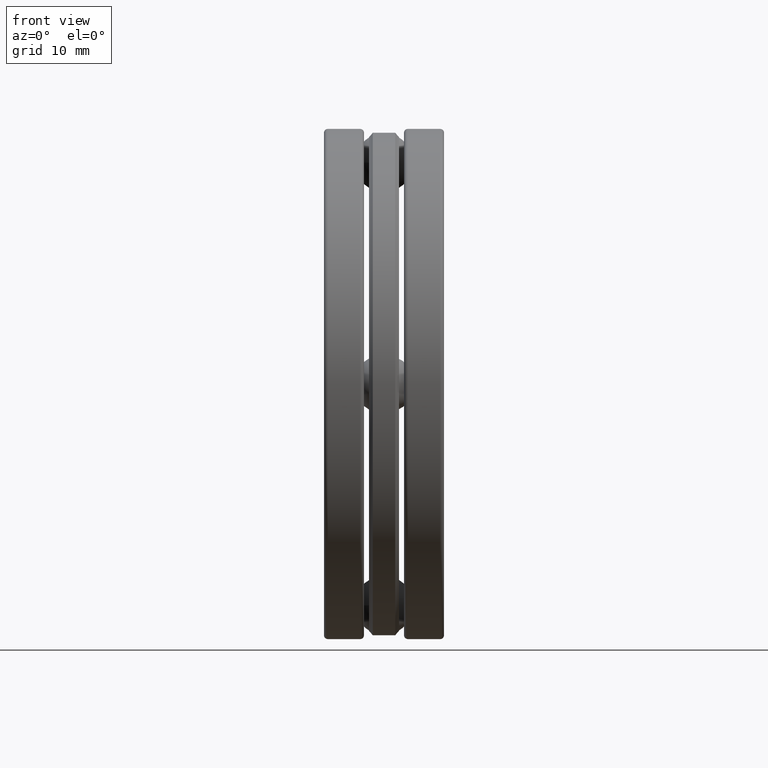
[diagram: clean part render]
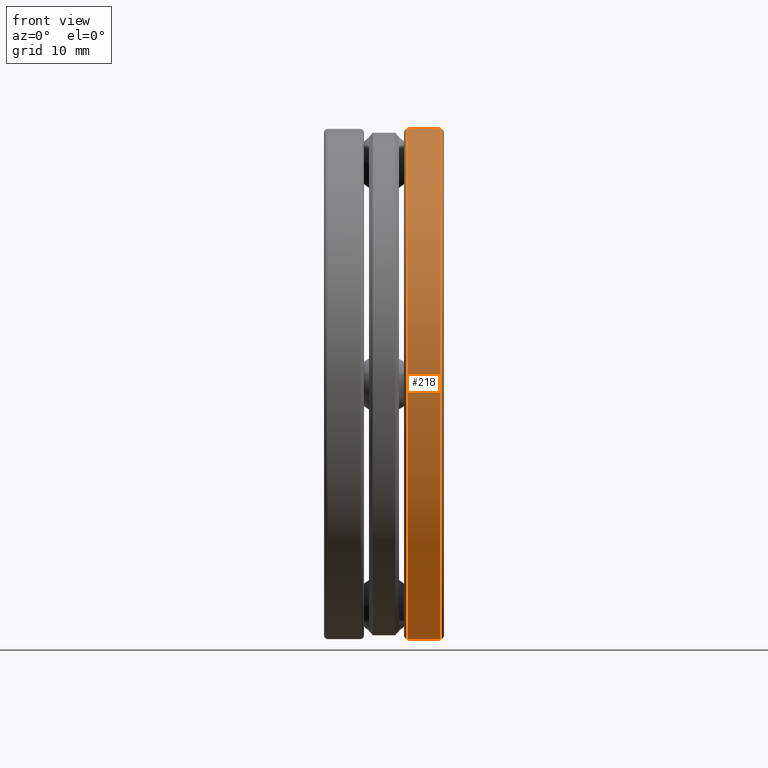
[diagram: same view with one face highlighted and labeled with its STEP entity id]
A machine part, front view. The second image highlights one B-rep face of the part: STEP entity #218.
In plain terms, the highlighted cylindrical surface (bore or boss wall) has radius 33.9979 mm, axis along (-1, -0, -0).
Its self-contained STEP definition (entity closure, byte-faithful):
#24 = DIRECTION ( 'NONE',  ( -1.000000000000000000, -0.0000000000000000000, -0.0000000000000000000 ) ) ;
#32 = FACE_OUTER_BOUND ( 'NONE', #562, .T. ) ;
#33 = EDGE_CURVE ( 'NONE', #607, #607, #538, .T. ) ;
#48 = ORIENTED_EDGE ( 'NONE', *, *, #33, .F. ) ;
#94 = CARTESIAN_POINT ( 'NONE',  ( 0.1250021000000005900, 0.0000000000000000000, 0.0000000000000000000 ) ) ;
#102 = VERTEX_POINT ( 'NONE', #691 ) ;
#119 = CARTESIAN_POINT ( 'NONE',  ( 0.0000000000000000000, 0.0000000000000000000, 0.0000000000000000000 ) ) ;
#120 = CIRCLE ( 'NONE', #464, 1.338499999999999600 ) ;
#156 = DIRECTION ( 'NONE',  ( 0.0000000000000000000, 0.0000000000000000000, 1.000000000000000000 ) ) ;
#178 = AXIS2_PLACEMENT_3D ( 'NONE', #94, #24, #156 ) ;
#182 = CARTESIAN_POINT ( 'NONE',  ( 0.2950000000000006500, 0.0000000000000000000, 0.0000000000000000000 ) ) ;
#218 = ADVANCED_FACE ( 'NONE', ( #577, #32 ), #772, .T. ) ;
#221 = EDGE_LOOP ( 'NONE', ( #48 ) ) ;
#306 = EDGE_CURVE ( 'NONE', #102, #102, #120, .T. ) ;
#430 = CARTESIAN_POINT ( 'NONE',  ( 0.1250021000000005900, 0.0000000000000000000, 1.338500000000000000 ) ) ;
#431 = DIRECTION ( 'NONE',  ( 0.0000000000000000000, 0.0000000000000000000, 1.000000000000000000 ) ) ;
#433 = DIRECTION ( 'NONE',  ( 0.0000000000000000000, 0.0000000000000000000, 1.000000000000000000 ) ) ;
#464 = AXIS2_PLACEMENT_3D ( 'NONE', #182, #673, #431 ) ;
#538 = CIRCLE ( 'NONE', #178, 1.338500000000000000 ) ;
#555 = DIRECTION ( 'NONE',  ( -1.000000000000000000, -0.0000000000000000000, -0.0000000000000000000 ) ) ;
#562 = EDGE_LOOP ( 'NONE', ( #785 ) ) ;
#577 = FACE_OUTER_BOUND ( 'NONE', #221, .T. ) ;
#607 = VERTEX_POINT ( 'NONE', #430 ) ;
#670 = AXIS2_PLACEMENT_3D ( 'NONE', #119, #555, #433 ) ;
#673 = DIRECTION ( 'NONE',  ( -1.000000000000000000, -0.0000000000000000000, -0.0000000000000000000 ) ) ;
#691 = CARTESIAN_POINT ( 'NONE',  ( 0.2950000000000006500, 0.0000000000000000000, 1.338499999999999600 ) ) ;
#772 = CYLINDRICAL_SURFACE ( 'NONE', #670, 1.338500000000000000 ) ;
#785 = ORIENTED_EDGE ( 'NONE', *, *, #306, .T. ) ;